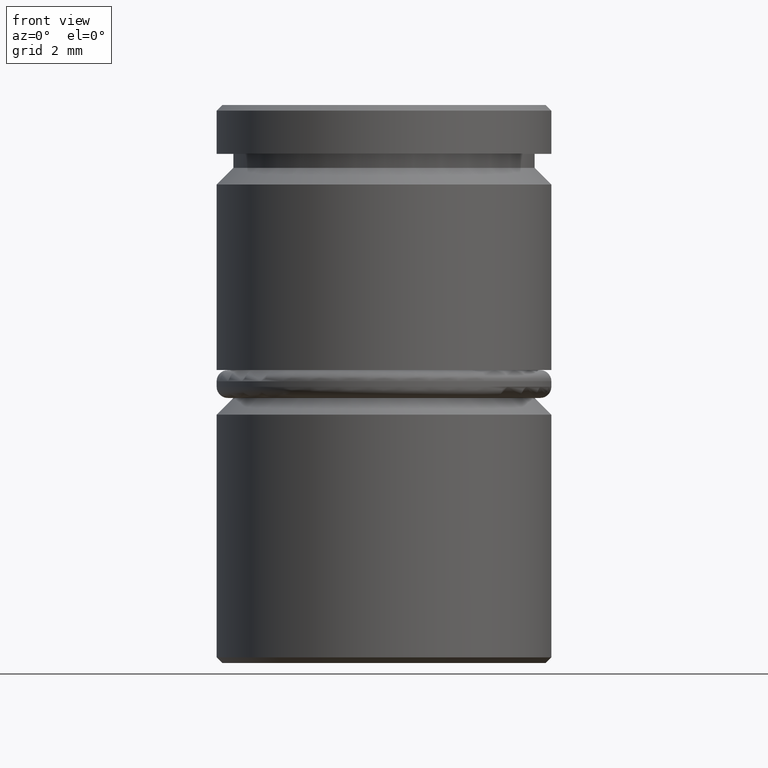
[diagram: clean part render]
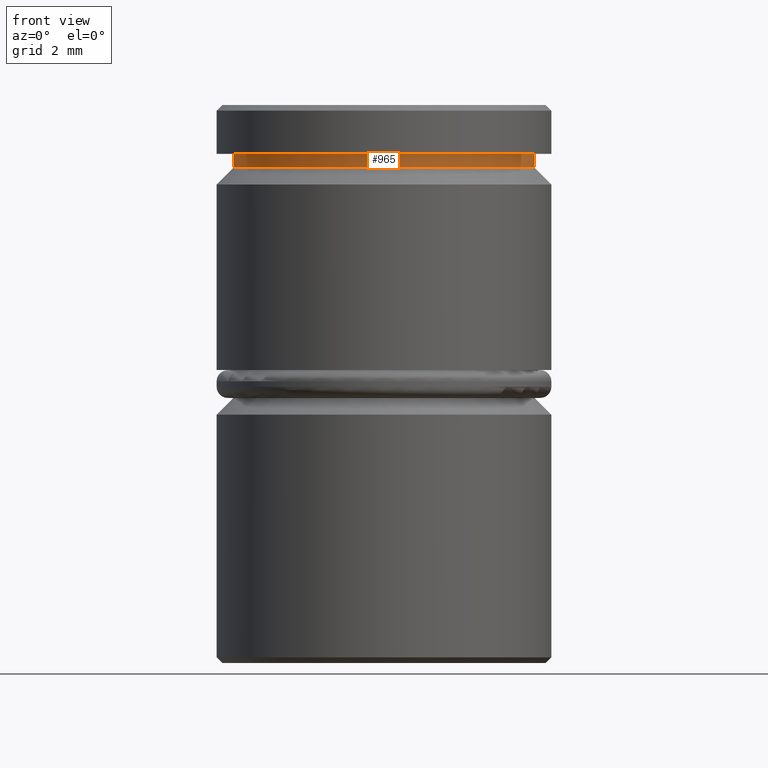
[diagram: same view with one face highlighted and labeled with its STEP entity id]
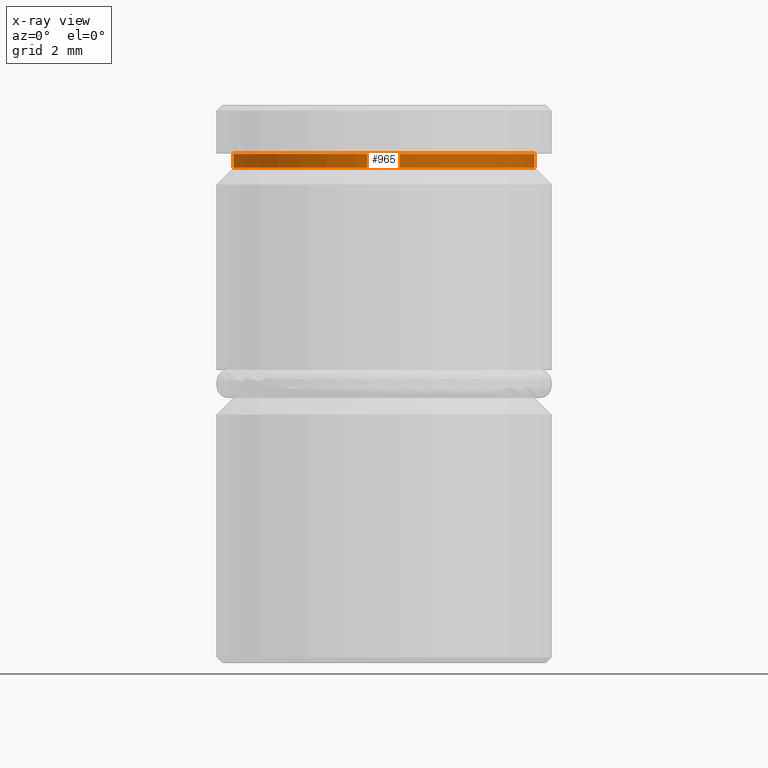
[diagram: x-ray of the same camera — body ghosted, the highlighted face saturated]
A machine part, front view. The second image highlights one B-rep face of the part: STEP entity #965.
The next image is the same camera in x-ray: the body ghosted, the highlighted face saturated — about 0% of this face is hidden behind the body in this view.
In plain terms, the highlighted cylindrical surface (partial cylindrical patch) has radius 2.7 mm, axis along (-0, -0, 1).
Its self-contained STEP definition (entity closure, byte-faithful):
#16 = CARTESIAN_POINT ( 'NONE',  ( -2.700000000000000178, 3.306546357697853733E-16, -1.125000000000000222 ) ) ;
#97 = DIRECTION ( 'NONE',  ( -0.000000000000000000, -0.000000000000000000, 1.000000000000000000 ) ) ;
#111 = LINE ( 'NONE', #207, #712 ) ;
#207 = CARTESIAN_POINT ( 'NONE',  ( -2.700000000000000178, 3.306546357697853733E-16, 0.000000000000000000 ) ) ;
#229 = CARTESIAN_POINT ( 'NONE',  ( 0.000000000000000000, 0.000000000000000000, -0.8749999999999998890 ) ) ;
#240 = ORIENTED_EDGE ( 'NONE', *, *, #364, .F. ) ;
#261 = CARTESIAN_POINT ( 'NONE',  ( 0.000000000000000000, 0.000000000000000000, -1.125000000000000222 ) ) ;
#270 = DIRECTION ( 'NONE',  ( -0.000000000000000000, -0.000000000000000000, 1.000000000000000000 ) ) ;
#280 = CARTESIAN_POINT ( 'NONE',  ( 2.700000000000000178, 0.000000000000000000, 0.000000000000000000 ) ) ;
#292 = CARTESIAN_POINT ( 'NONE',  ( 0.000000000000000000, 0.000000000000000000, 0.000000000000000000 ) ) ;
#295 = VERTEX_POINT ( 'NONE', #388 ) ;
#364 = EDGE_CURVE ( 'NONE', #295, #410, #677, .T. ) ;
#384 = FACE_OUTER_BOUND ( 'NONE', #542, .T. ) ;
#388 = CARTESIAN_POINT ( 'NONE',  ( -2.700000000000000178, 3.306546357697853733E-16, -0.8749999999999998890 ) ) ;
#389 = ORIENTED_EDGE ( 'NONE', *, *, #762, .T. ) ;
#410 = VERTEX_POINT ( 'NONE', #1061 ) ;
#430 = AXIS2_PLACEMENT_3D ( 'NONE', #229, #667, #597 ) ;
#433 = VECTOR ( 'NONE', #1092, 1000.000000000000000 ) ;
#488 = ORIENTED_EDGE ( 'NONE', *, *, #954, .T. ) ;
#542 = EDGE_LOOP ( 'NONE', ( #674, #389, #488, #240 ) ) ;
#569 = AXIS2_PLACEMENT_3D ( 'NONE', #261, #270, #790 ) ;
#596 = EDGE_CURVE ( 'NONE', #623, #295, #111, .T. ) ;
#597 = DIRECTION ( 'NONE',  ( 1.000000000000000000, 0.000000000000000000, 0.000000000000000000 ) ) ;
#623 = VERTEX_POINT ( 'NONE', #16 ) ;
#624 = AXIS2_PLACEMENT_3D ( 'NONE', #292, #999, #909 ) ;
#648 = CYLINDRICAL_SURFACE ( 'NONE', #624, 2.700000000000000178 ) ;
#667 = DIRECTION ( 'NONE',  ( -0.000000000000000000, -0.000000000000000000, 1.000000000000000000 ) ) ;
#674 = ORIENTED_EDGE ( 'NONE', *, *, #596, .F. ) ;
#677 = CIRCLE ( 'NONE', #430, 2.700000000000000178 ) ;
#712 = VECTOR ( 'NONE', #97, 1000.000000000000000 ) ;
#738 = CARTESIAN_POINT ( 'NONE',  ( 2.700000000000000178, 0.000000000000000000, -1.125000000000000222 ) ) ;
#762 = EDGE_CURVE ( 'NONE', #623, #969, #1033, .T. ) ;
#790 = DIRECTION ( 'NONE',  ( 1.000000000000000000, 0.000000000000000000, 0.000000000000000000 ) ) ;
#909 = DIRECTION ( 'NONE',  ( 1.000000000000000000, 0.000000000000000000, 0.000000000000000000 ) ) ;
#954 = EDGE_CURVE ( 'NONE', #969, #410, #1083, .T. ) ;
#965 = ADVANCED_FACE ( 'NONE', ( #384 ), #648, .T. ) ;
#969 = VERTEX_POINT ( 'NONE', #738 ) ;
#999 = DIRECTION ( 'NONE',  ( -0.000000000000000000, -0.000000000000000000, 1.000000000000000000 ) ) ;
#1033 = CIRCLE ( 'NONE', #569, 2.700000000000000178 ) ;
#1061 = CARTESIAN_POINT ( 'NONE',  ( 2.700000000000000178, 0.000000000000000000, -0.8749999999999998890 ) ) ;
#1083 = LINE ( 'NONE', #280, #433 ) ;
#1092 = DIRECTION ( 'NONE',  ( -0.000000000000000000, -0.000000000000000000, 1.000000000000000000 ) ) ;